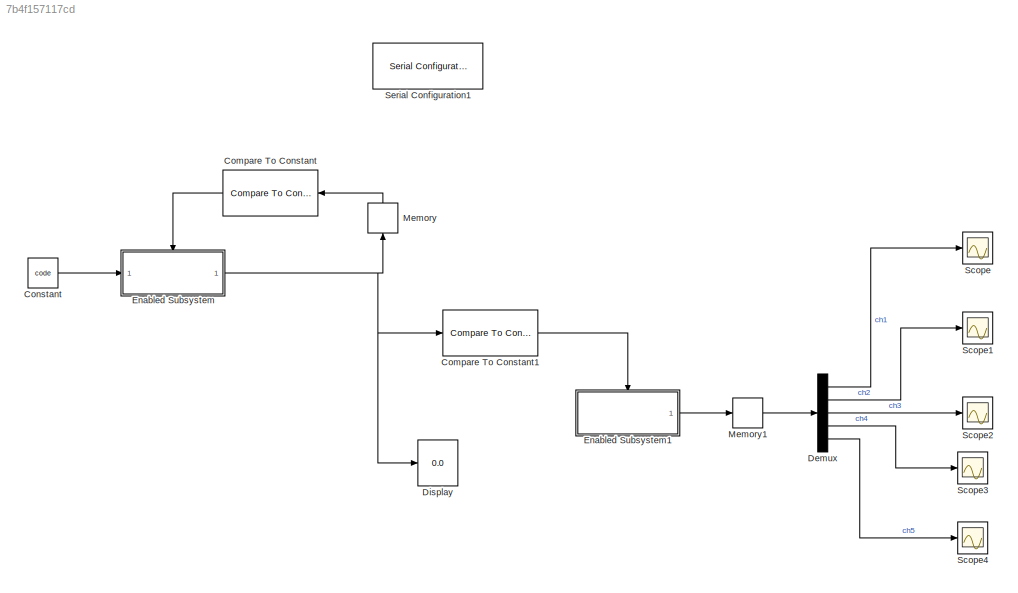
MODEL slx_7b4f157117cd
KIND model
CONFIG AbsTol = auto
CONFIG FixedStep = 0.001
CONFIG MaxStep = auto
CONFIG MinStep = auto
CONFIG RelTol = 1e-3
CONFIG SampleTimeConstraint = Unconstrained
CONFIG Solver = ode3
CONFIG SolverMode = Auto
CONFIG SolverName = ode3
CONFIG StartTime = 0.0
CONFIG StopTime = 0.5
BLOCK [Reference] Compare To Constant  REF=simulink/Logic and Bit
Operations/Compare
To Constant
  OutDataTypeStr = boolean
  Ports = [1, 1]
  SourceBlock = simulink/Logic and Bit\nOperations/Compare\nTo Constant
  SourceType = Compare To Constant
  ZeroCross = on
  const = 1
  relop = <
BLOCK [Reference] Compare To Constant1  REF=simulink/Logic and Bit
Operations/Compare
To Constant
  OutDataTypeStr = boolean
  Ports = [1, 1]
  SourceBlock = simulink/Logic and Bit\nOperations/Compare\nTo Constant
  SourceType = Compare To Constant
  ZeroCross = on
  const = 1
  relop = >=
BLOCK [Constant] Constant
  SampleTime = 0.001
  Value = code
BLOCK [Demux] Demux
  DisplayOption = bar
  Outputs = 5
  Ports = [1, 5]
BLOCK [Display] Display
  Decimation = 1
  Ports = [1]
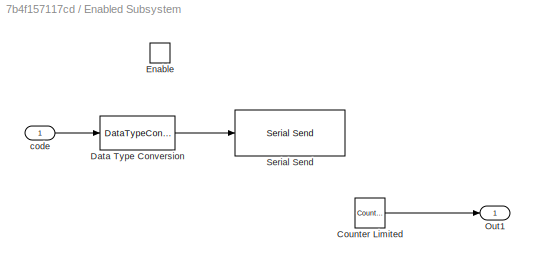
BLOCK [SubSystem] Enabled Subsystem
  Ports = [1, 1, 1]
  RequestExecContextInheritance = off
  TreatAsAtomicUnit = on
BLOCK [Reference] Enabled Subsystem/Counter Limited  REF=simulink/Sources/Counter
Limited
  Ports = [0, 1]
  SourceBlock = simulink/Sources/Counter\nLimited
  SourceType = Counter Limited
  tsamp = -1
  uplimit = 2
BLOCK [DataTypeConversion] Enabled Subsystem/Data Type Conversion
  OutDataTypeStr = int8
  RndMeth = Floor
  SaturateOnIntegerOverflow = off
BLOCK [EnablePort] Enabled Subsystem/Enable
  Ports = []
BLOCK [Outport] Enabled Subsystem/Out1
  IconDisplay = Port number
BLOCK [Reference] Enabled Subsystem/Serial Send  REF=instrumentlib/Serial Send
  ComPort = COM3
  ComPortMenu = COM3
  EnableBlockingMode = off
  ObjConstructor = serial('COM3');
  Ports = [1]
  SourceBlock = instrumentlib/Serial Send
  SourceType = Serial Send
  Terminator = <none>
BLOCK [Inport] Enabled Subsystem/code
  IconDisplay = Port number
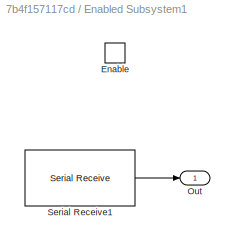
BLOCK [SubSystem] Enabled Subsystem1
  Ports = [0, 1, 1]
  RequestExecContextInheritance = off
  TreatAsAtomicUnit = on
BLOCK [EnablePort] Enabled Subsystem1/Enable
  Ports = []
BLOCK [Outport] Enabled Subsystem1/Out
  IconDisplay = Port number
BLOCK [Reference] Enabled Subsystem1/Serial Receive1  REF=instrumentlib/Serial Receive
  ActionDataUnavailable = Output last received value
  ComPort = COM3
  ComPortMenu = COM3
  CustomValue = 0
  DataSize = [5  1]
  DataType = single
  EnableBlockingMode = on
  ObjConstructor = serial('COM3');
  Ports = [0, 1]
  SampleTime = 0.001
  SourceBlock = instrumentlib/Serial Receive
  SourceType = Serial Receive
  Terminator = LF ('\n')
BLOCK [Memory] Memory
BLOCK [Memory] Memory1
BLOCK [Scope] Scope
  DataFormat = Structure
  Floating = off
  LimitDataPoints = off
  NumInputPorts = 1
  Ports = [1]
  SaveToWorkspace = on
BLOCK [Scope] Scope1
  DataFormat = Structure
  Floating = off
  LimitDataPoints = off
  NumInputPorts = 1
  Ports = [1]
  SaveName = ScopeData1
  SaveToWorkspace = on
BLOCK [Scope] Scope2
  DataFormat = Structure
  Floating = off
  LimitDataPoints = off
  NumInputPorts = 1
  Ports = [1]
  SaveName = ScopeData2
  SaveToWorkspace = on
BLOCK [Scope] Scope3
  DataFormat = Structure
  Floating = off
  LimitDataPoints = off
  NumInputPorts = 1
  Ports = [1]
  SaveName = ScopeData3
  SaveToWorkspace = on
BLOCK [Scope] Scope4
  DataFormat = Structure
  Floating = off
  LimitDataPoints = off
  NumInputPorts = 1
  Ports = [1]
  SaveName = ScopeData4
  SaveToWorkspace = on
BLOCK [Reference] Serial Configuration1  REF=instrumentlib/Serial Configuration
  BaudRate = 460800
  ByteOrder = BigEndian
  ComPort = COM3
  ComPortMenu = <Please select a port...>
  DataBits = 8
  FlowControl = none
  ObjConstructor = serial('COM3');
  Parity = none
  Ports = []
  Priority = -200000
  SourceBlock = instrumentlib/Serial Configuration
  SourceType = Serial Configuration
  StopBits = 1
  Timeout = 10
LINE Compare To Constant1:1 -> Enabled Subsystem1:enable
LINE Compare To Constant:1 -> Enabled Subsystem:enable
LINE Constant:1 -> Enabled Subsystem:1
LINE Demux:1 -> Scope:1
LINE Demux:2 -> Scope1:1
LINE Demux:3 -> Scope2:1
LINE Demux:4 -> Scope3:1
LINE Demux:5 -> Scope4:1
LINE Enabled Subsystem/Counter Limited:1 -> Enabled Subsystem/Out1:1
LINE Enabled Subsystem/Data Type Conversion:1 -> Enabled Subsystem/Serial Send:1
LINE Enabled Subsystem/code:1 -> Enabled Subsystem/Data Type Conversion:1
LINE Enabled Subsystem1/Serial Receive1:1 -> Enabled Subsystem1/Out:1
LINE Enabled Subsystem1:1 -> Memory1:1
NET Enabled Subsystem:1 -> Compare To Constant1:1, Display:1, Memory:1
LINE Memory1:1 -> Demux:1
LINE Memory:1 -> Compare To Constant:1
note: NET lines group one-source signal fan-out (src -> all destinations, sorted); 1:1 wires keep LINE
